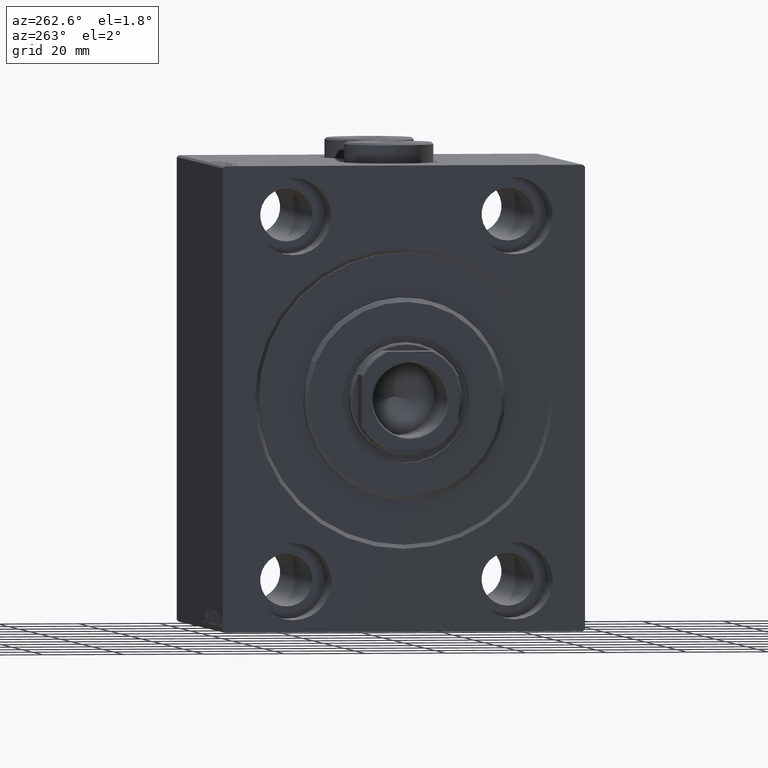
[diagram: clean part render]
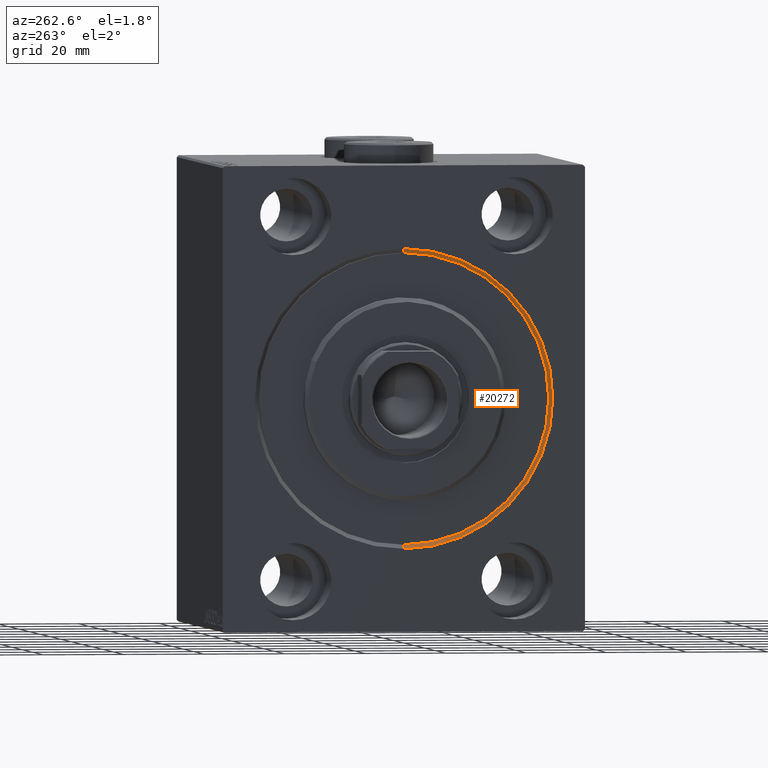
[diagram: same view with one face highlighted and labeled with its STEP entity id]
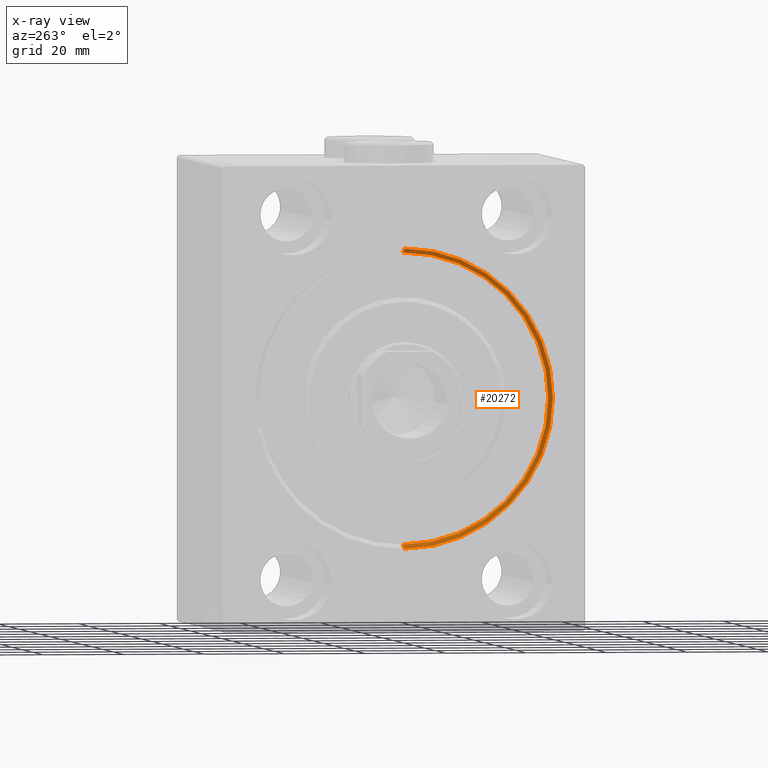
[diagram: x-ray of the same camera — body ghosted, the highlighted face saturated]
A machine part, auxiliary view. The second image highlights one B-rep face of the part: STEP entity #20272.
The next image is the same camera in x-ray: the body ghosted, the highlighted face saturated — about 0% of this face is hidden behind the body in this view.
In plain terms, the highlighted conical surface has half-angle 45 deg.
Its self-contained STEP definition (entity closure, byte-faithful):
#230 = VERTEX_POINT ( 'NONE', #19548 ) ;
#583 = CARTESIAN_POINT ( 'NONE',  ( 0.9999999999999800160, 0.000000000000000000, 36.00000000000000000 ) ) ;
#1034 = VECTOR ( 'NONE', #5289, 1000.000000000000000 ) ;
#1227 = EDGE_CURVE ( 'NONE', #10096, #9049, #7298, .T. ) ;
#1875 = CARTESIAN_POINT ( 'NONE',  ( 0.9999999999999800160, 0.000000000000000000, 36.00000000000000000 ) ) ;
#2518 = CARTESIAN_POINT ( 'NONE',  ( 0.000000000000000000, 0.000000000000000000, 36.99999999999999289 ) ) ;
#3608 = EDGE_CURVE ( 'NONE', #230, #9049, #43968, .T. ) ;
#3809 = CARTESIAN_POINT ( 'NONE',  ( 0.000000000000000000, 0.000000000000000000, 0.000000000000000000 ) ) ;
#5289 = DIRECTION ( 'NONE',  ( -0.7071067811865426878, 0.000000000000000000, 0.7071067811865524577 ) ) ;
#7298 = CIRCLE ( 'NONE', #32804, 36.99999999999999289 ) ;
#7642 = ORIENTED_EDGE ( 'NONE', *, *, #3608, .T. ) ;
#9049 = VERTEX_POINT ( 'NONE', #37529 ) ;
#10096 = VERTEX_POINT ( 'NONE', #2518 ) ;
#11119 = CARTESIAN_POINT ( 'NONE',  ( 0.9999999999999800160, 0.000000000000000000, 0.000000000000000000 ) ) ;
#11740 = VECTOR ( 'NONE', #36244, 1000.000000000000000 ) ;
#12066 = AXIS2_PLACEMENT_3D ( 'NONE', #11119, #41720, #24816 ) ;
#12294 = FACE_OUTER_BOUND ( 'NONE', #27089, .T. ) ;
#12682 = CARTESIAN_POINT ( 'NONE',  ( 0.9999999999999800160, 4.408728476930470856E-15, -36.00000000000000000 ) ) ;
#12770 = CIRCLE ( 'NONE', #12066, 36.00000000000000000 ) ;
#17568 = VERTEX_POINT ( 'NONE', #583 ) ;
#19447 = EDGE_CURVE ( 'NONE', #230, #17568, #12770, .T. ) ;
#19548 = CARTESIAN_POINT ( 'NONE',  ( 0.9999999999999800160, 4.408728476930470856E-15, -36.00000000000000000 ) ) ;
#19809 = ORIENTED_EDGE ( 'NONE', *, *, #19447, .F. ) ;
#20272 = ADVANCED_FACE ( 'NONE', ( #12294 ), #43462, .F. ) ;
#21592 = AXIS2_PLACEMENT_3D ( 'NONE', #40812, #41044, #44467 ) ;
#24816 = DIRECTION ( 'NONE',  ( 0.000000000000000000, 0.000000000000000000, -1.000000000000000000 ) ) ;
#27089 = EDGE_LOOP ( 'NONE', ( #19809, #7642, #42225, #43727 ) ) ;
#27979 = DIRECTION ( 'NONE',  ( 0.000000000000000000, 0.000000000000000000, -1.000000000000000000 ) ) ;
#28885 = DIRECTION ( 'NONE',  ( 1.000000000000000000, 0.000000000000000000, 0.000000000000000000 ) ) ;
#29467 = LINE ( 'NONE', #1875, #1034 ) ;
#32804 = AXIS2_PLACEMENT_3D ( 'NONE', #3809, #28885, #27979 ) ;
#36244 = DIRECTION ( 'NONE',  ( -0.7071067811865426878, 8.659560562354993255E-17, -0.7071067811865524577 ) ) ;
#37529 = CARTESIAN_POINT ( 'NONE',  ( 0.000000000000000000, 4.531193156845205215E-15, -36.99999999999999289 ) ) ;
#38637 = EDGE_CURVE ( 'NONE', #17568, #10096, #29467, .T. ) ;
#40812 = CARTESIAN_POINT ( 'NONE',  ( 0.9999999999999800160, 0.000000000000000000, 0.000000000000000000 ) ) ;
#41044 = DIRECTION ( 'NONE',  ( -1.000000000000000000, 0.000000000000000000, 0.000000000000000000 ) ) ;
#41720 = DIRECTION ( 'NONE',  ( -1.000000000000000000, 0.000000000000000000, 0.000000000000000000 ) ) ;
#42225 = ORIENTED_EDGE ( 'NONE', *, *, #1227, .F. ) ;
#43462 = CONICAL_SURFACE ( 'NONE', #21592, 36.00000000000000000, 0.7853981633974552734 ) ;
#43727 = ORIENTED_EDGE ( 'NONE', *, *, #38637, .F. ) ;
#43968 = LINE ( 'NONE', #12682, #11740 ) ;
#44467 = DIRECTION ( 'NONE',  ( 0.000000000000000000, 0.000000000000000000, 1.000000000000000000 ) ) ;